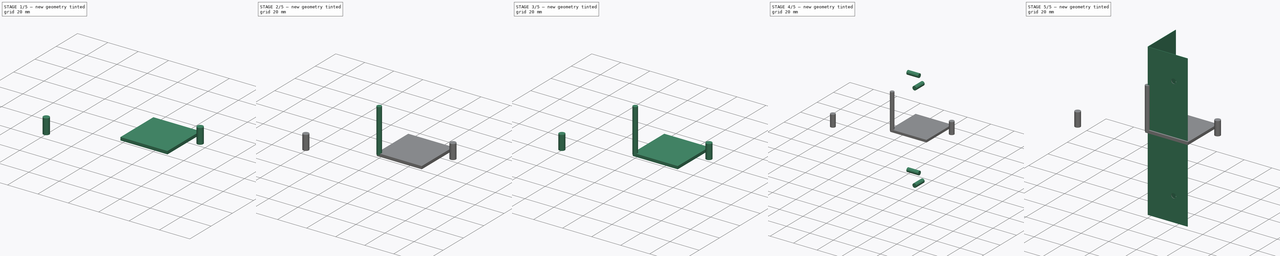
[diagram: build sequence overview — one tinted view per stage of 5, left to right]
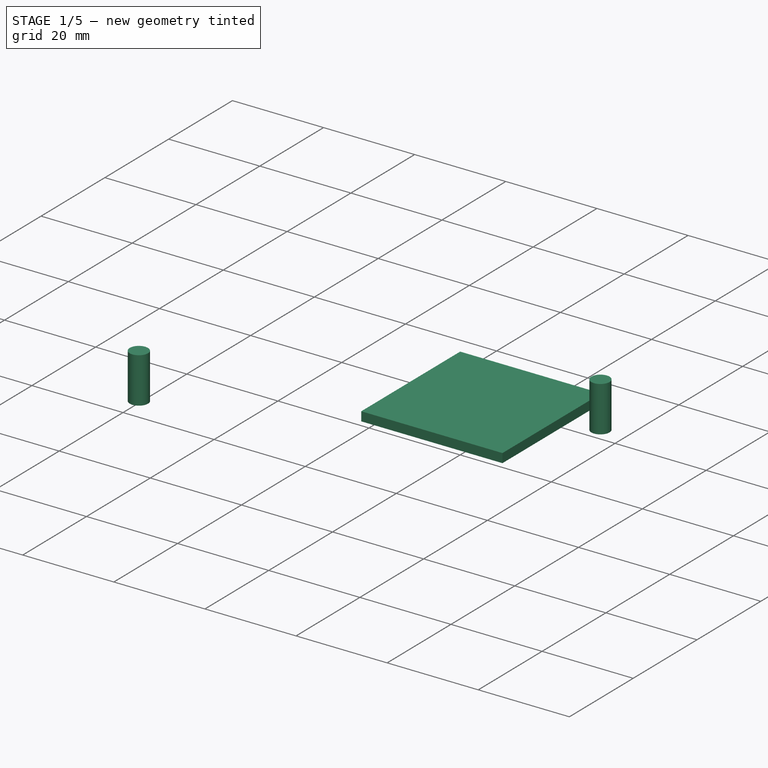
[diagram: stage 1 of 5 — iso view after this stage's code; geometry added in this stage tinted green]
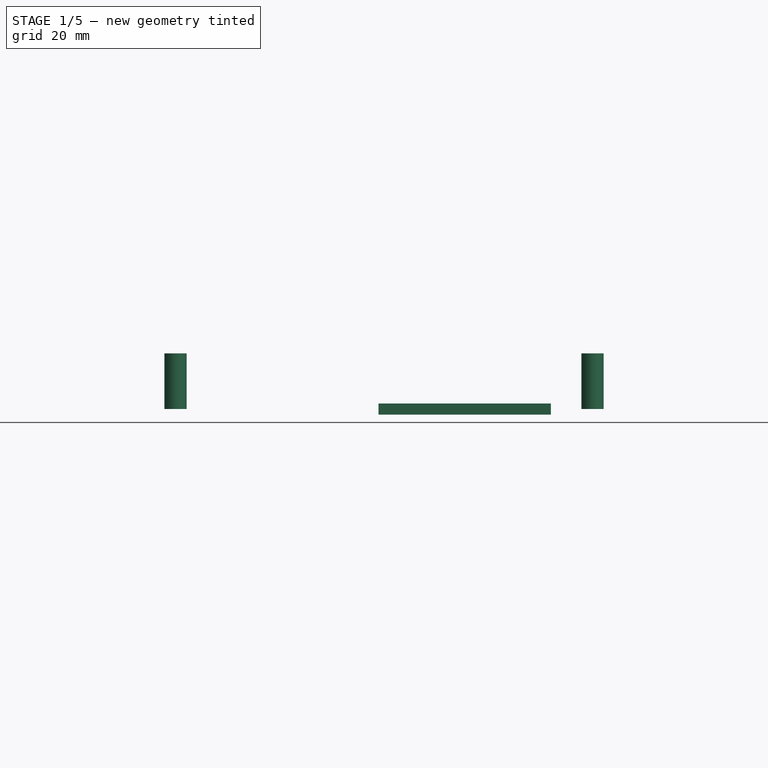
[diagram: stage 1 of 5 — front view after this stage's code; geometry added in this stage tinted green]
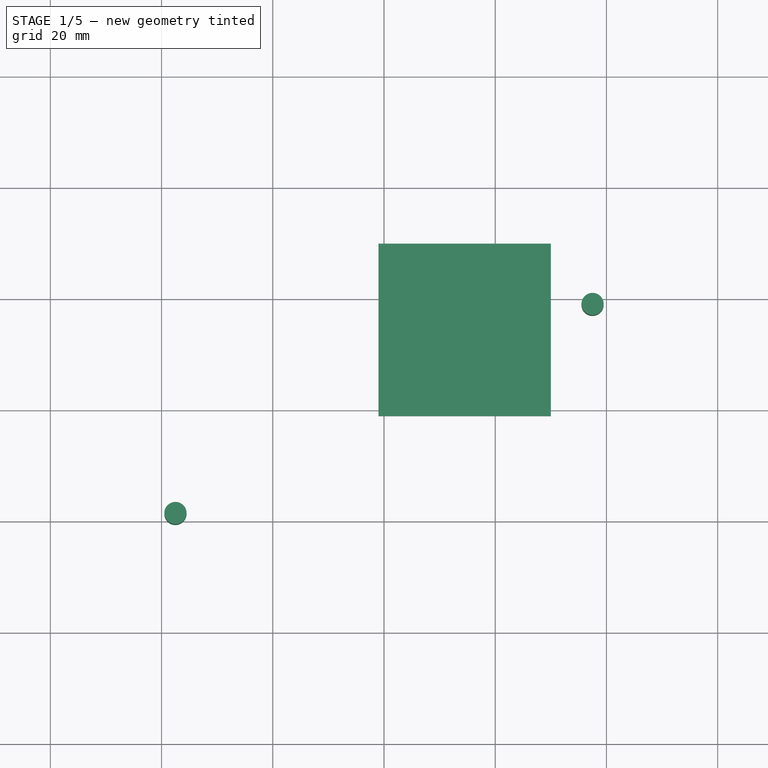
[diagram: stage 1 of 5 — top view after this stage's code; geometry added in this stage tinted green]
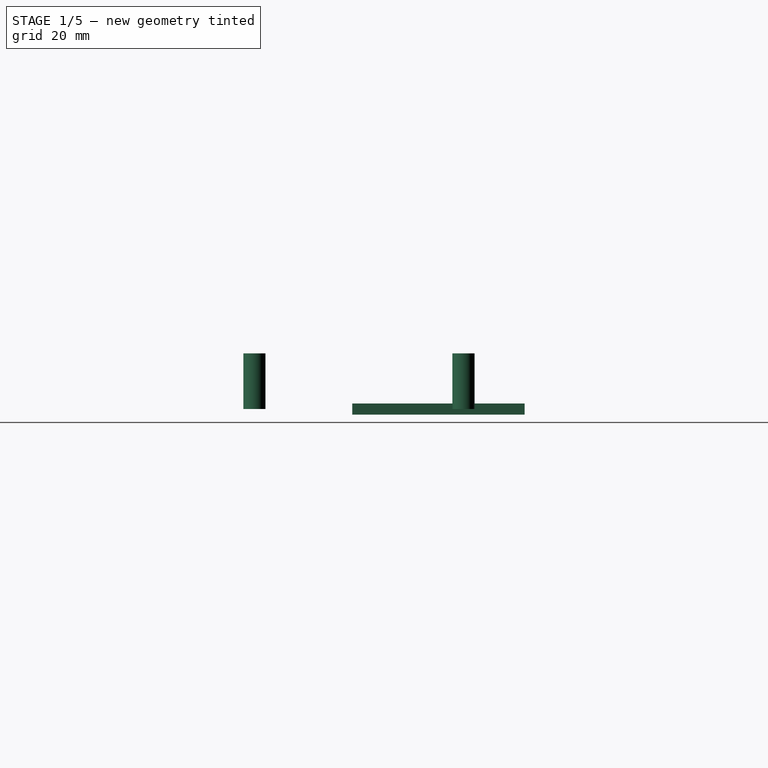
[diagram: stage 1 of 5 — right view after this stage's code; geometry added in this stage tinted green]
FCSTD DOCUMENT  (FreeCAD 1.1R38827 (Git))
Label: module_transport_corner2
License: All rights reserved
LicenseURL: http://en.wikipedia.org/wiki/All_rights_reserved
objects: Part::FeaturePython×40, Path::FeaturePython×16, App::DocumentObjectGroup×13, Part::Part2DObjectPython×8, Path::FeatureShape×6, Sketcher::SketchObject×5, Path::FeatureArea×5, App::FeaturePython×4, Path::FeatureCompound×4, PartDesign::Body×2, Part::Cylinder×2, PartDesign::SubShapeBinder×1, PartDesign::FeaturePython×1, Part::MultiFuse×1, PartDesign::Boolean×1, Part::Feature×1, Part::Compound×1
note: 80 computed .brp shape members not serialized (recipe doc carries the construction recipe); baked Part::Feature solids carry a one-line shape summary decoded from their .brp

FEATURE [PartDesign::Body] Body
  AllowCompound = false
  Group = -> [Binder,BaseBend,Boolean]
  Origin = -> Origin
  Tip = -> Boolean
FEATURE [Part::Feature] Unfold
  Placement = pos=(0,0,0) rot=(0.57735,0.57735,0.57735;2.0944rad)
  shape: bbox 110 x 57.59 x 0.3 mm, 10 faces (baked)
FEATURE [Sketcher::SketchObject] Unfold_Sketch
  ArcFitTolerance = 1e-06
  FullyConstrained = false
  MakeInternals = false
  sketch-geometry (8):
    g0: LineSegment StartX=-55 StartY=29 StartZ=0 EndX=-55 EndY=-28.5927 EndZ=0
    g1: LineSegment StartX=-55 StartY=-28.5927 StartZ=0 EndX=55 EndY=-28.5927 EndZ=0
    g2: LineSegment StartX=55 StartY=29 StartZ=0 EndX=55 EndY=-28.5927 EndZ=0
    g3: LineSegment StartX=-55 StartY=29 StartZ=0 EndX=55 EndY=29 EndZ=0
    g4: Circle CenterX=37.5 CenterY=-18.5927 CenterZ=0 NormalX=0 NormalY=0 NormalZ=-1 AngleXU=3.14159 Radius=1.7
    g5: Circle CenterX=-37.5 CenterY=-18.5927 CenterZ=0 NormalX=0 NormalY=0 NormalZ=-1 AngleXU=3.14159 Radius=1.7
    g6: Circle CenterX=37.5 CenterY=19 CenterZ=0 NormalX=0 NormalY=0 NormalZ=-1 AngleXU=-3.14159 Radius=1.7
    g7: Circle CenterX=-37.5 CenterY=19 CenterZ=0 NormalX=0 NormalY=0 NormalZ=-1 AngleXU=-3.14159 Radius=1.7
FEATURE [Sketcher::SketchObject] Unfold_Sketch_Outline
  ArcFitTolerance = 1e-06
  FullyConstrained = false
  MakeInternals = false
  sketch-geometry (4):
    g0: LineSegment StartX=-55 StartY=29 StartZ=0 EndX=-55 EndY=-28.5927 EndZ=0
    g1: LineSegment StartX=-55 StartY=-28.5927 StartZ=0 EndX=55 EndY=-28.5927 EndZ=0
    g2: LineSegment StartX=55 StartY=29 StartZ=0 EndX=55 EndY=-28.5927 EndZ=0
    g3: LineSegment StartX=-55 StartY=29 StartZ=0 EndX=55 EndY=29 EndZ=0
FEATURE [Sketcher::SketchObject] Unfold_Sketch_Internal
  ArcFitTolerance = 1e-06
  FullyConstrained = false
  MakeInternals = false
  sketch-geometry (4):
    g0: Circle CenterX=-37.5 CenterY=19 CenterZ=0 NormalX=0 NormalY=0 NormalZ=-1 AngleXU=-3.14159 Radius=1.7
    g1: Circle CenterX=37.5 CenterY=19 CenterZ=0 NormalX=0 NormalY=0 NormalZ=-1 AngleXU=-3.14159 Radius=1.7
    g2: Circle CenterX=-37.5 CenterY=-18.5927 CenterZ=0 NormalX=0 NormalY=0 NormalZ=-1 AngleXU=3.14159 Radius=1.7
    g3: Circle CenterX=37.5 CenterY=-18.5927 CenterZ=0 NormalX=0 NormalY=0 NormalZ=-1 AngleXU=3.14159 Radius=1.7
FEATURE [Sketcher::SketchObject] Unfold_Sketch_bends
  ArcFitTolerance = 1e-06
  FullyConstrained = false
  MakeInternals = false
  Placement = pos=(0,0,0.5) rot=(0,0,1;0rad)
  sketch-geometry (1):
    g0: LineSegment StartX=55 StartY=0.20365 StartZ=0 EndX=-55 EndY=0.20365 EndZ=0
FEATURE [Path::FeatureArea] FeatureArea  label="per"
  Accuracy = 0.01
  Angle = 45
  AngleShift = 0
  CleanDistance = 0
  ClipFill = 0
  ClipperScale = 10000000
  Coplanar = 2
  Deflection = 0.01
  EndType = 0
  Explode = false
  ExtraPass = 0
  Fill = 2
  FitArcs = true
  FromCenter = false
  JoinType = 0
  LastStepover = 0
  MaxArcPoints = 100
  MinArcPoints = 4
  MiterLimit = 2
  Offset = 1.5875
  OpenMode = 0
  Operation = 0
  Outline = false
  PocketExtraOffset = 0
  PocketLastStepover = 0
  PocketMode = 0
  PocketStepover = 0
  Project = false
  Reorient = true
  RoundPrecision = 0
  SectionCount = 0
  SectionMode = 2
  SectionOffset = 0
  SectionTolerance = 1e-06
  Shift = 0
  Simplify = false
  Sources = -> [Unfold_Sketch_Outline]
  Stepdown = 1
  Stepover = 0
  SubjectFill = 0
  Thicken = false
  Tolerance = 1e-07
  ToolRadius = 1
  Unit = 1
FEATURE [Path::FeatureArea] FeatureArea001
  Accuracy = 0.01
  Angle = 45
  AngleShift = 0
  CleanDistance = 0
  ClipFill = 0
  ClipperScale = 10000000
  Coplanar = 0
  Deflection = 0.01
  EndType = 0
  Explode = false
  ExtraPass = 0
  Fill = 1
  FitArcs = true
  FromCenter = false
  JoinType = 0
  LastStepover = 0
  MaxArcPoints = 100
  MinArcPoints = 4
  MiterLimit = 2
  Offset = -1.5875
  OpenMode = 0
  Operation = 0
  Outline = false
  PocketExtraOffset = 0
  PocketLastStepover = 0
  PocketMode = 0
  PocketStepover = 0
  Project = false
  Reorient = true
  RoundPrecision = 0
  SectionCount = 0
  SectionMode = 2
  SectionOffset = 0
  SectionTolerance = 1e-06
  Shift = 0
  Simplify = false
  Sources = -> [Unfold_Sketch_Internal]
  Stepdown = 1
  Stepover = 0
  SubjectFill = 0
  Thicken = false
  Tolerance = 1e-07
  ToolRadius = 1
  Unit = 1
FEATURE [Part::FeaturePython] Placment  # WARN: FeaturePython — macro-defined, semantics opaque (R4)
  AttacherType = Attacher::AttachEngine3D
  ExposePlacement = true
  MarkerShape = 1
  MarkerSize = 10
  NumElements = 1
  Placement = pos=(-37.5,-18.5927,0) rot=(0,0,1;0rad)
  Type = lattice2AttachablePlacement.AttachablePlacement
  isLattice = 1
FEATURE [Part::FeaturePython] Placment001  # WARN: FeaturePython — macro-defined, semantics opaque (R4)
  AttacherType = Attacher::AttachEngine3D
  ExposePlacement = true
  MarkerShape = 1
  MarkerSize = 10
  NumElements = 1
  Placement = pos=(37.5,19,0) rot=(0,0,1;0rad)
  Type = lattice2AttachablePlacement.AttachablePlacement
  isLattice = 1
FEATURE [Part::FeaturePython] Join001  # WARN: FeaturePython — macro-defined, semantics opaque (R4)
  ExposePlacement = false
  Interleave = false
  Links = -> [Placment,Placment001]
  MarkerShape = 1
  MarkerSize = 0
  NumElements = 2
  Type = lattice2JoinArrays.JoinArrays
  isLattice = 1
FEATURE [Part::Cylinder] Cylinder001  label="fix_cyl"
  Angle = 360
  AttacherType = Attacher::AttachEngine3D
  FirstAngle = 0
  Height = 10
  Radius = 2
  SecondAngle = 0
FEATURE [Part::FeaturePython] Populate001  label="Populate Join001 with fix_cyl"  # WARN: FeaturePython — macro-defined, semantics opaque (R4)
  Copying = 0
  ExposePlacement = false
  MarkerShape = 1
  MarkerSize = 0
  NumElements = 0
  Object = -> Cylinder001
  OutputCompounding = 1
  PlacementsTo = -> Join001
  Referencing = 0
  Type = lattice2PopulateCopies.LatticePopulateCopies
  isLattice = 0
FEATURE [Path::FeaturePython] TC__Default_Tool003  label="Tool 3,175 1Flute003"  # Path/CAM operation (typed FeaturePython)
  HorizFeed = 51.6667
  HorizRapid = 0
  SpindleDir = 0
  SpindleSpeed = 18000
  Tool = -> ToolBit003
  ToolNumber = 1
  VertFeed = 16.6667
  VertRapid = 0
  expr: HorizRapid = SetupSheet003.HorizRapid
  expr: VertRapid = SetupSheet003.VertRapid
FEATURE [Path::FeaturePython] Custom006  # Path/CAM operation (typed FeaturePython)
  Active = true
  CoolantMode = 0
  CycleTime = 00:00:00
  Gcode = G0 Z10
  OpStockZMax = 1
  OpStockZMin = -1
  OpToolDiameter = 3.175
  Source = 0
  StartDepth = 1
  ToolController = -> TC__Default_Tool003
FEATURE [Path::FeaturePython] Custom007  # Path/CAM operation (typed FeaturePython)
  Active = true
  CoolantMode = 0
  CycleTime = Cycletime Error
  OpStockZMax = 1
  OpStockZMin = -1
  OpToolDiameter = 3.175
  Source = 0
  StartDepth = 1
  ToolController = -> TC__Default_Tool003
FEATURE [App::DocumentObjectGroup] Tools003
  Group = -> [TC__Default_Tool003]
FEATURE [Part::FeaturePython] Stock003  # WARN: FeaturePython — macro-defined, semantics opaque (R4)
  Base = -> Model003
  ExtXneg = 1
  ExtXpos = 1
  ExtYneg = 1
  ExtYpos = 1
  ExtZneg = 1
  ExtZpos = 1
  StockType = FromBase
FEATURE [Part::Part2DObjectPython] Clone2D004  label="Unfold_Sketch (2D)"  # Draft 2D object (typed FeaturePython)
  Fuse = false
  Objects = -> [Unfold_Sketch]
  Placement = pos=(-55,28.5927,0) rot=(0,0,1;0rad)
  Scale = (1,1,1)
FEATURE [Part::FeaturePython] Placment002  # WARN: FeaturePython — macro-defined, semantics opaque (R4)
  AttacherType = Attacher::AttachEngine3D
  AttachmentSupport = -> [Clone2D004]
  ExposePlacement = true
  MapMode = 2
  MarkerShape = 1
  MarkerSize = 50
  NumElements = 1
  Placement = pos=(-55,28.5927,0) rot=(0,0,1;0rad)
  Type = lattice2AttachablePlacement.AttachablePlacement
  isLattice = 1
FEATURE [Part::FeaturePython] Populate004  label="Populate Placment002 with Populate LinearArray001 with LinearArray002"  # WARN: FeaturePython — macro-defined, semantics opaque (R4)
  Copying = 0
  ExposePlacement = false
  MarkerShape = 1
  MarkerSize = 0
  NumElements = 48
  Object = -> Join002
  OutputCompounding = 0
  PlacementsTo = -> Placment002
  Referencing = 0
  Type = lattice2PopulateCopies.LatticePopulateCopies
  isLattice = 1
FEATURE [Part::FeaturePython] Populate006  label="cut_placements2"  # WARN: FeaturePython — macro-defined, semantics opaque (R4)
  Copying = 0
  ExposePlacement = false
  MarkerShape = 1
  MarkerSize = 0
  NumElements = 96
  Object = -> Populate004
  OutputCompounding = 0
  PlacementsTo = -> Join003
  Referencing = 0
  Type = lattice2PopulateCopies.LatticePopulateCopies
  isLattice = 1
FEATURE [Part::FeaturePython] Join004  label="cut_placements"  # WARN: FeaturePython — macro-defined, semantics opaque (R4)
  ExposePlacement = false
  Interleave = false
  Links = -> [Populate004]
  MarkerShape = 1
  MarkerSize = 0
  NumElements = 48
  Type = lattice2JoinArrays.JoinArrays
  isLattice = 1
FEATURE [Part::FeaturePython] Populate007  label="cut_placements with per"  # WARN: FeaturePython — macro-defined, semantics opaque (R4)
  Copying = 0
  ExposePlacement = false
  MarkerShape = 1
  MarkerSize = 0
  NumElements = 0
  Object = -> FeatureArea
  OutputCompounding = 1
  PlacementsTo = -> Join004
  Referencing = 0
  Type = lattice2PopulateCopies.LatticePopulateCopies
  isLattice = 0
FEATURE [Part::FeaturePython] Populate008  label="Populate cut_placements with fix"  # WARN: FeaturePython — macro-defined, semantics opaque (R4)
  Copying = 0
  ExposePlacement = false
  MarkerShape = 1
  MarkerSize = 0
  NumElements = 0
  Object = -> FeatureArea003
  OutputCompounding = 1
  PlacementsTo = -> Join004
  Referencing = 0
  Type = lattice2PopulateCopies.LatticePopulateCopies
  isLattice = 0
FEATURE [Path::FeatureShape] PathShape
  AbsoluteArcCenter = false
  ArcPlane = 1
  Deflection = 0.01
  Direction = 0
  EmitPreamble = true
  FeedRate = 52
  FeedRateVertical = 17
  MinDistance = 0
  NearestK = 3
  Orientation = 0
  ResumeHeight = 3
  RetractAxis = 2
  RetractThreshold = 3.2
  Retraction = 20
  Segmentation = 0
  SortAbscissa = 3
  SortMode = 1
  Sources = -> [Populate008]
  StartPoint = (0,0,0)
  UseStartPoint = false
  Verbose = true
FEATURE [Part::FeaturePython] Populate009  label="Populate cut_placements with holes"  # WARN: FeaturePython — macro-defined, semantics opaque (R4)
  Copying = 0
  ExposePlacement = false
  MarkerShape = 1
  MarkerSize = 0
  NumElements = 0
  Object = -> FeatureArea004
  OutputCompounding = 1
  PlacementsTo = -> Join004
  Referencing = 0
  Type = lattice2PopulateCopies.LatticePopulateCopies
  isLattice = 0
FEATURE [Path::FeatureShape] PathShape001
  AbsoluteArcCenter = false
  ArcPlane = 1
  Deflection = 0.01
  Direction = 0
  EmitPreamble = true
  FeedRate = 52
  FeedRateVertical = 17
  MinDistance = 0
  NearestK = 3
  Orientation = 0
  ResumeHeight = 3
  RetractAxis = 2
  RetractThreshold = 3.2
  Retraction = 20
  Segmentation = 0
  SortAbscissa = 3
  SortMode = 1
  Sources = -> [Populate009]
  StartPoint = (0,0,0)
  UseStartPoint = false
  Verbose = true
FEATURE [Path::FeatureShape] PathShape002
  AbsoluteArcCenter = false
  ArcPlane = 1
  Deflection = 0.01
  Direction = 0
  EmitPreamble = true
  FeedRate = 52
  FeedRateVertical = 17
  MinDistance = 0
  NearestK = 3
  Orientation = 0
  ResumeHeight = 3
  RetractAxis = 2
  RetractThreshold = 0
  Retraction = 20
  Segmentation = 0
  SortAbscissa = 3
  SortMode = 1
  Sources = -> [Populate007]
  StartPoint = (0,0,0)
  UseStartPoint = false
  Verbose = true
FEATURE [Path::FeatureCompound] Compound
  Group = -> [PathShape]
  UsePlacements = false
FEATURE [App::DocumentObjectGroup] Operations
  Group = -> [Custom,Compound,Custom003]
FEATURE [Path::FeaturePython] Job  label="1-fix"  # Path/CAM operation (typed FeaturePython)
  CycleTime = 00:00:00
  Fixtures = G54
  GeometryTolerance = 0.01
  JobType = 0
  Model = -> Model
  Operations = -> Operations
  OrderOutputBy = 2
  PostProcessor = 22
  PostProcessorArgs = --axis-modal --modal
  PostProcessorOutputFile = <path>/%j-%S.tap
  SetupSheet = -> SetupSheet
  SplitOutput = false
  Stock = -> Stock
  Tools = -> Tools
FEATURE [Path::FeatureCompound] Compound001
  Group = -> [PathShape002]
  UsePlacements = false
FEATURE [App::DocumentObjectGroup] Operations001
  Group = -> [Custom001,Compound001,Custom004]
FEATURE [Path::FeaturePython] Job001  label="4-per"  # Path/CAM operation (typed FeaturePython)
  CycleTime = 00:00:00
  Fixtures = G54
  GeometryTolerance = 0.01
  JobType = 0
  Model = -> Model001
  Operations = -> Operations001
  OrderOutputBy = 2
  PostProcessor = 22
  PostProcessorArgs = --axis-modal --modal
  PostProcessorOutputFile = <path>/%j-%S.tap
  SetupSheet = -> SetupSheet001
  SplitOutput = false
  Stock = -> Stock001
  Tools = -> Tools001
FEATURE [Part::FeaturePython] Populate010  label="Populate cut_placements with Unfold_Sketch_bends"  # WARN: FeaturePython — macro-defined, semantics opaque (R4)
  Copying = 0
  ExposePlacement = false
  MarkerShape = 1
  MarkerSize = 0
  NumElements = 0
  Object = -> Unfold_Sketch_bends
  OutputCompounding = 1
  PlacementsTo = -> Join004
  Referencing = 0
  Type = lattice2PopulateCopies.LatticePopulateCopies
  isLattice = 0
FEATURE [Path::FeatureShape] PathShape003
  AbsoluteArcCenter = false
  ArcPlane = 1
  Deflection = 0.01
  Direction = 0
  EmitPreamble = true
  FeedRate = 52
  FeedRateVertical = 17
  MinDistance = 0
  NearestK = 3
  Orientation = 0
  ResumeHeight = 3
  RetractAxis = 2
  RetractThreshold = 3.3
  Retraction = 20
  Segmentation = 0
  SortAbscissa = 3
  SortMode = 1
  Sources = -> [Populate010]
  StartPoint = (0,0,0)
  UseStartPoint = false
  Verbose = true
FEATURE [Path::FeatureCompound] Compound002
  Group = -> [PathShape003]
  UsePlacements = true
FEATURE [App::DocumentObjectGroup] Operations002
  Group = -> [Custom002,Compound002,Custom005]
FEATURE [Path::FeaturePython] Job002  label="3-90bend"  # Path/CAM operation (typed FeaturePython)
  CycleTime = 00:00:00
  Fixtures = G54
  GeometryTolerance = 0.01
  JobType = 0
  Model = -> Model002
  Operations = -> Operations002
  OrderOutputBy = 2
  PostProcessor = 22
  PostProcessorArgs = --axis-modal --modal
  PostProcessorOutputFile = <path>/%j-%S.tap
  SetupSheet = -> SetupSheet002
  SplitOutput = false
  Stock = -> Stock002
  Tools = -> Tools002
FEATURE [Part::FeaturePython] Populate012  label="Populate cut_placements with Array from Vertices of Unfold_Sketch_bends"  # WARN: FeaturePython — macro-defined, semantics opaque (R4)
  Copying = 0
  ExposePlacement = false
  MarkerShape = 1
  MarkerSize = 0
  NumElements = 96
  Object = -> ArrayFromShape
  OutputCompounding = 0
  PlacementsTo = -> Join004
  Referencing = 0
  Type = lattice2PopulateCopies.LatticePopulateCopies
  isLattice = 1
FEATURE [Part::FeaturePython] Populate013  label="Populate Populate cut_placements with Array from Vertices of Unfold_Sketch_bends with Circle"  # WARN: FeaturePython — macro-defined, semantics opaque (R4)
  Copying = 0
  ExposePlacement = false
  MarkerShape = 1
  MarkerSize = 0
  NumElements = 0
  Object = -> Circle
  OutputCompounding = 1
  PlacementsTo = -> Populate012
  Referencing = 0
  Type = lattice2PopulateCopies.LatticePopulateCopies
  isLattice = 0
FEATURE [Path::FeatureShape] PathShape004
  AbsoluteArcCenter = false
  ArcPlane = 1
  Deflection = 0.01
  Direction = 0
  EmitPreamble = true
  FeedRate = 52
  FeedRateVertical = 17
  MinDistance = 0
  NearestK = 3
  Orientation = 0
  ResumeHeight = 3
  RetractAxis = 2
  RetractThreshold = 3.3
  Retraction = 20
  Segmentation = 0
  SortAbscissa = 3
  SortMode = 1
  Sources = -> [Populate013]
  StartPoint = (0,0,0)
  UseStartPoint = false
  Verbose = true
FEATURE [Path::FeatureCompound] Compound003
  Group = -> [PathShape001,PathShape004]
  UsePlacements = false
FEATURE [App::DocumentObjectGroup] Operations003
  Group = -> [Custom007,Compound003,Custom006]
FEATURE [Path::FeaturePython] Job003  label="2-holes"  # Path/CAM operation (typed FeaturePython)
  CycleTime = 00:00:00
  Fixtures = G54
  GeometryTolerance = 0.01
  JobType = 0
  Model = -> Model003
  Operations = -> Operations003
  OrderOutputBy = 2
  PostProcessor = 22
  PostProcessorArgs = --axis-modal --modal
  PostProcessorOutputFile = <path>/%j-%S.tap
  SetupSheet = -> SetupSheet003
  SplitOutput = false
  Stock = -> Stock003
  Tools = -> Tools003
FEATURE [App::DocumentObjectGroup] Group  label="jobs"
  Group = -> [Job,Job003,Job002,Job001]
FEATURE [Part::Part2DObjectPython] Rectangle  # Draft 2D object (typed FeaturePython)
  Area = 0
  ChamferSize = 0
  Columns = 1
  FilletRadius = 0
  Height = 400
  Length = 1000
  MakeFace = false
  Placement = pos=(-1000,0,0) rot=(0,0,1;0rad)
  Rows = 1
FEATURE [Part::FeaturePython] Populate014  label="Populate Array from Vertices of Unfold_Sketch_bends with Circle"  # WARN: FeaturePython — macro-defined, semantics opaque (R4)
  Copying = 0
  ExposePlacement = false
  MarkerShape = 1
  MarkerSize = 0
  NumElements = 0
  Object = -> Circle
  OutputCompounding = 1
  PlacementsTo = -> ArrayFromShape
  Referencing = 0
  Type = lattice2PopulateCopies.LatticePopulateCopies
  isLattice = 0
FEATURE [Part::Compound] Compound004
  Links = -> [FeatureArea004,Populate014]
FEATURE [Part::FeaturePython] Populate015  label="Populate cut_placements with Compound004"  # WARN: FeaturePython — macro-defined, semantics opaque (R4)
  Copying = 0
  ExposePlacement = false
  MarkerShape = 1
  MarkerSize = 0
  NumElements = 0
  Object = -> Compound004
  OutputCompounding = 1
  PlacementsTo = -> Join004
  Referencing = 0
  Type = lattice2PopulateCopies.LatticePopulateCopies
  isLattice = 0
FEATURE [Path::FeatureShape] PathShape005
  AbsoluteArcCenter = false
  ArcPlane = 1
  Deflection = 0.01
  Direction = 0
  EmitPreamble = true
  FeedRate = 52
  FeedRateVertical = 17
  MinDistance = 0
  NearestK = 3
  Orientation = 0
  ResumeHeight = 3
  RetractAxis = 2
  RetractThreshold = 3.2
  Retraction = 20
  Segmentation = 0
  SortAbscissa = 3
  SortMode = 2
  Sources = -> [Populate015]
  StartPoint = (0,0,0)
  UseStartPoint = false
  Verbose = true
note: 8 file-system paths scrubbed to <path> (originals preserved in the JSON sidecar)
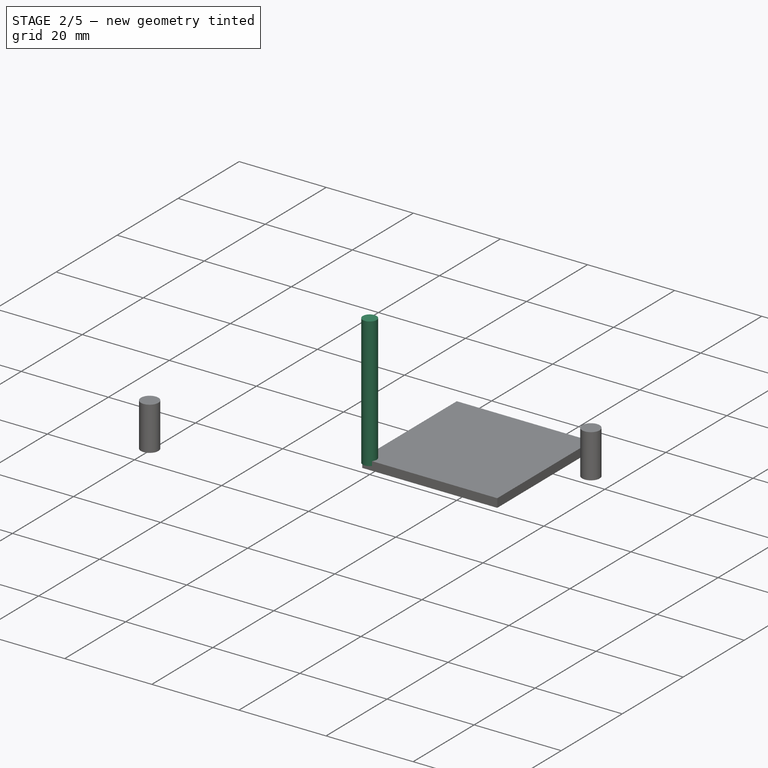
[diagram: stage 2 of 5 — iso view after this stage's code; geometry added in this stage tinted green]
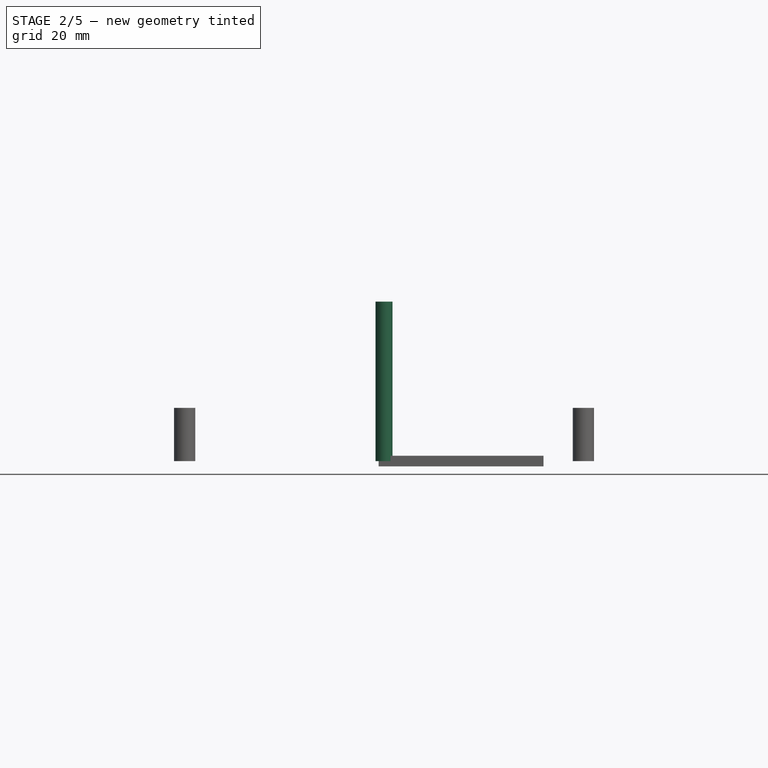
[diagram: stage 2 of 5 — front view after this stage's code; geometry added in this stage tinted green]
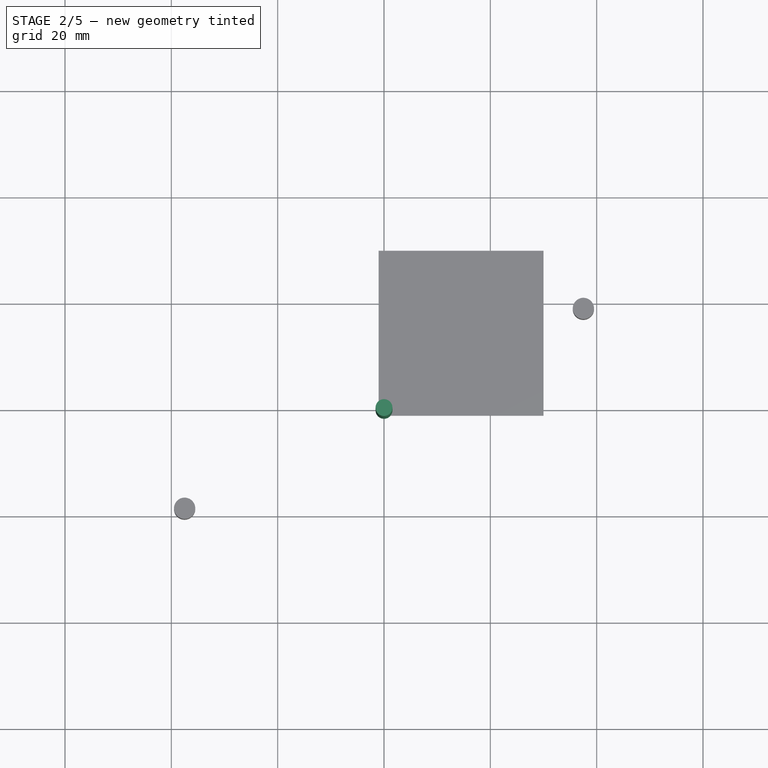
[diagram: stage 2 of 5 — top view after this stage's code; geometry added in this stage tinted green]
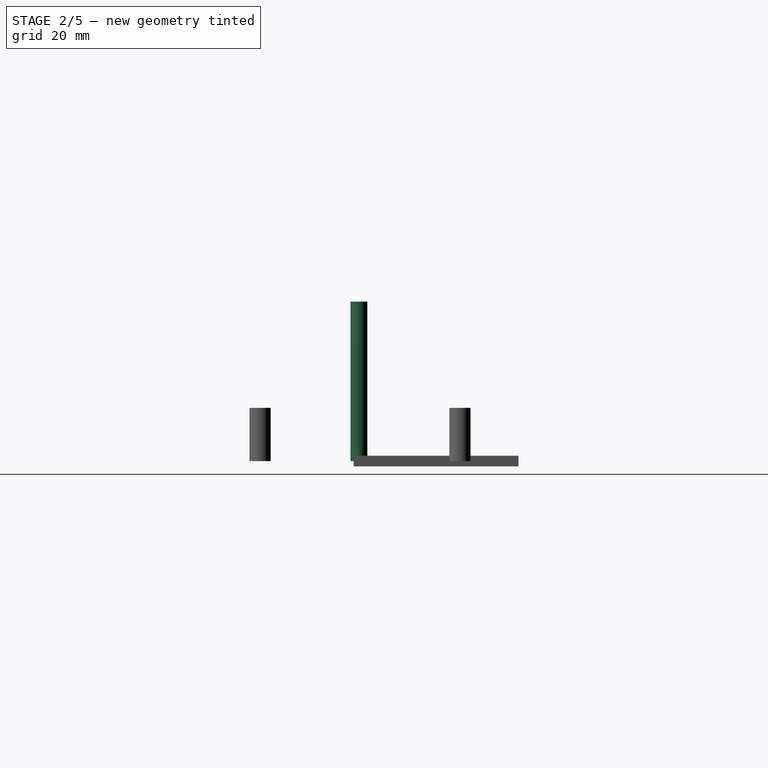
[diagram: stage 2 of 5 — right view after this stage's code; geometry added in this stage tinted green]
FEATURE [Path::FeaturePython] Custom  # Path/CAM operation (typed FeaturePython)
  Active = true
  CoolantMode = 0
  CycleTime = Cycletime Error
  OpStockZMax = 1
  OpStockZMin = -1
  OpToolDiameter = 3.175
  Source = 0
  StartDepth = 1
  ToolController = -> TC__Default_Tool
FEATURE [App::FeaturePython] SetupSheet001  # Path/CAM operation (typed FeaturePython)
  ClearanceHeightExpression = SetupSheet.ClearanceHeightOffset
  ClearanceHeightOffset = 15
  CoolantMode = 0
  CoolantModes = None | Flood | Mist
  FinalDepthExpression = -0,05 mm
  HorizRapid = 0
  ProfileDirection = 1
  ProfileSide = 0
  SafeHeightExpression = SetupSheet.SafeHeightOffset
  SafeHeightOffset = 3
  StartDepthExpression = 3 mm
  StepDownExpression = 10 mm
  VertRapid = 0
FEATURE [Part::Part2DObjectPython] Clone2D001  label="Model-Sketch001"  # Draft 2D object (typed FeaturePython)
  Fuse = false
  Objects = -> [Sketch]
  PathResource = Model
  Scale = (1,1,1)
FEATURE [App::DocumentObjectGroup] Model001
  Group = -> [Clone2D001]
FEATURE [Part::FeaturePython] ToolBit001  label="Endmill001"  # Path/CAM toolbit (typed FeaturePython)
  BitPropertyNames = Chipload | CuttingEdgeHeight | Diameter | Flutes | Length | Material | ShankDiameter | SpindleDirection
  BitShape = <path>
  Chipload = 0
  CuttingEdgeHeight = 10
  Diameter = 3.175
  Flutes = 0
  Length = 30
  Material = 0
  ShankDiameter = 3.175
  ShapeName = endmill
  SpindleDirection = 1
FEATURE [Part::FeaturePython] ToolBit002  label="Endmill002"  # Path/CAM toolbit (typed FeaturePython)
  BitPropertyNames = Chipload | CuttingEdgeHeight | Diameter | Flutes | Length | Material | ShankDiameter | SpindleDirection
  BitShape = <path>
  Chipload = 0
  CuttingEdgeHeight = 10
  Diameter = 3.175
  Flutes = 0
  Length = 30
  Material = 0
  ShankDiameter = 3.175
  ShapeName = endmill
  SpindleDirection = 1
FEATURE [Path::FeaturePython] Custom003  # Path/CAM operation (typed FeaturePython)
  Active = true
  CoolantMode = 0
  CycleTime = 00:00:00
  Gcode = G0 Z10
  OpStockZMax = 1
  OpStockZMin = -1
  OpToolDiameter = 3.175
  Source = 0
  StartDepth = 1
  ToolController = -> TC__Default_Tool
FEATURE [Path::FeaturePython] Custom004  # Path/CAM operation (typed FeaturePython)
  Active = true
  CoolantMode = 0
  CycleTime = 00:00:00
  Gcode = G0 Z10
  OpStockZMax = 1
  OpStockZMin = -1
  OpToolDiameter = 3.175
  Source = 0
  StartDepth = 1
  ToolController = -> TC__Default_Tool001
FEATURE [Path::FeaturePython] Custom005  # Path/CAM operation (typed FeaturePython)
  Active = true
  CoolantMode = 0
  CycleTime = 00:00:00
  Gcode = G0 Z10
  OpStockZMax = 1
  OpStockZMin = -1
  OpToolDiameter = 3.175
  Source = 0
  StartDepth = 1
  ToolController = -> TC__Default_Tool002
FEATURE [Part::FeaturePython] Downgrade  label="Vertices of Unfold_Sketch_bends"  # WARN: FeaturePython — macro-defined, semantics opaque (R4)
  Base = -> Unfold_Sketch_bends
  Mode = 11
FEATURE [Part::FeaturePython] ArrayFromShape  label="Array from Vertices of Unfold_Sketch_bends"  # WARN: FeaturePython — macro-defined, semantics opaque (R4)
  CompoundTraversal = 1
  ExposePlacement = false
  MarkerShape = 1
  MarkerSize = 20
  NumElements = 2
  OrientElementIndex = 0
  OrientMode = 2
  ShapeLink = -> Downgrade
  TranslateElementIndex = 0
  TranslateMode = 3
  Type = lattice2ArrayFromShape.LatticeArrayFromShape
  isLattice = 1
FEATURE [Part::Part2DObjectPython] Circle  # Draft 2D object (typed FeaturePython)
  Area = 0
  FirstAngle = 0
  LastAngle = 0
  MakeFace = false
  Placement = pos=(0,0,2) rot=(0,0,1;0rad)
  Radius = 0.1
FEATURE [App::FeaturePython] SetupSheet003  # Path/CAM operation (typed FeaturePython)
  ClearanceHeightExpression = SetupSheet.ClearanceHeightOffset
  ClearanceHeightOffset = 15
  CoolantMode = 0
  CoolantModes = None | Flood | Mist
  FinalDepthExpression = -0,05 mm
  HorizRapid = 0
  ProfileDirection = 1
  ProfileSide = 0
  SafeHeightExpression = SetupSheet.SafeHeightOffset
  SafeHeightOffset = 3
  StartDepthExpression = 3 mm
  StepDownExpression = 10 mm
  VertRapid = 0
FEATURE [Part::Part2DObjectPython] Clone2D003  label="Model-Sketch003"  # Draft 2D object (typed FeaturePython)
  Fuse = false
  Objects = -> [Sketch]
  PathResource = Model
  Scale = (1,1,1)
FEATURE [App::DocumentObjectGroup] Model003
  Group = -> [Clone2D003]
FEATURE [Part::FeaturePython] ToolBit003  label="Endmill003"  # Path/CAM toolbit (typed FeaturePython)
  BitPropertyNames = Chipload | CuttingEdgeHeight | Diameter | Flutes | Length | Material | ShankDiameter | SpindleDirection
  BitShape = <path>
  Chipload = 0
  CuttingEdgeHeight = 10
  Diameter = 3.175
  Flutes = 0
  Length = 30
  Material = 0
  ShankDiameter = 3.175
  ShapeName = endmill
  SpindleDirection = 1
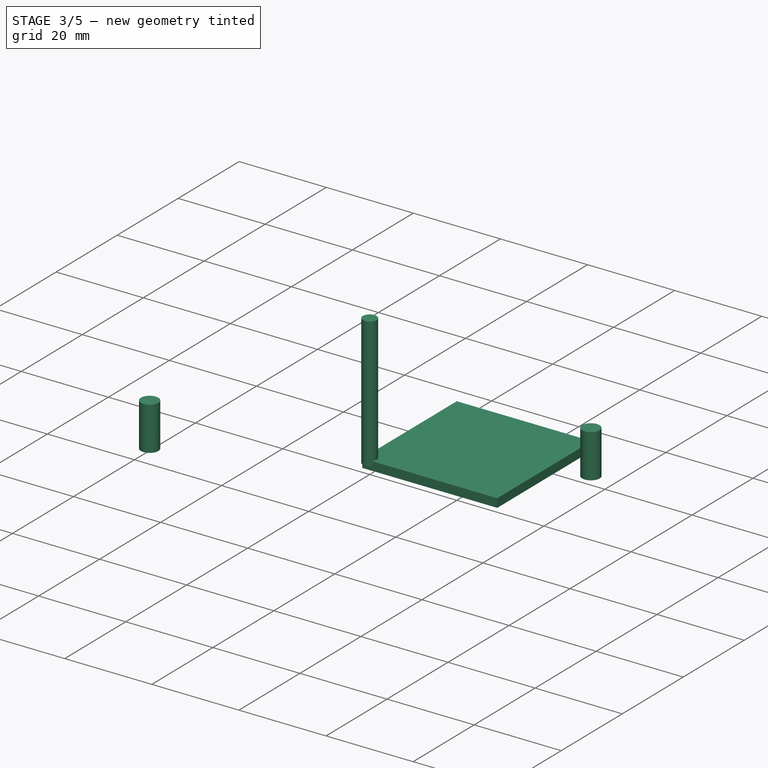
[diagram: stage 3 of 5 — iso view after this stage's code; geometry added in this stage tinted green]
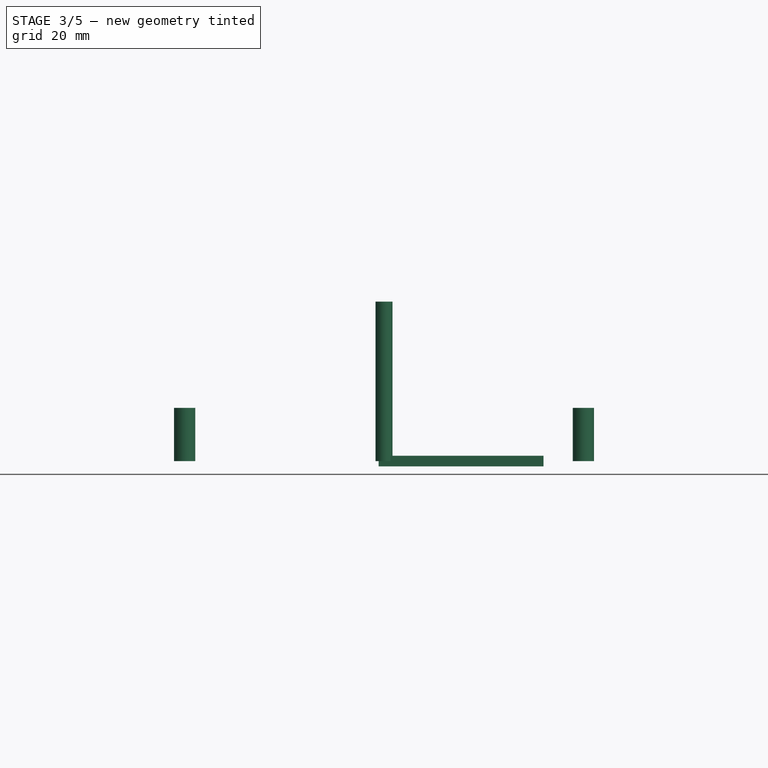
[diagram: stage 3 of 5 — front view after this stage's code; geometry added in this stage tinted green]
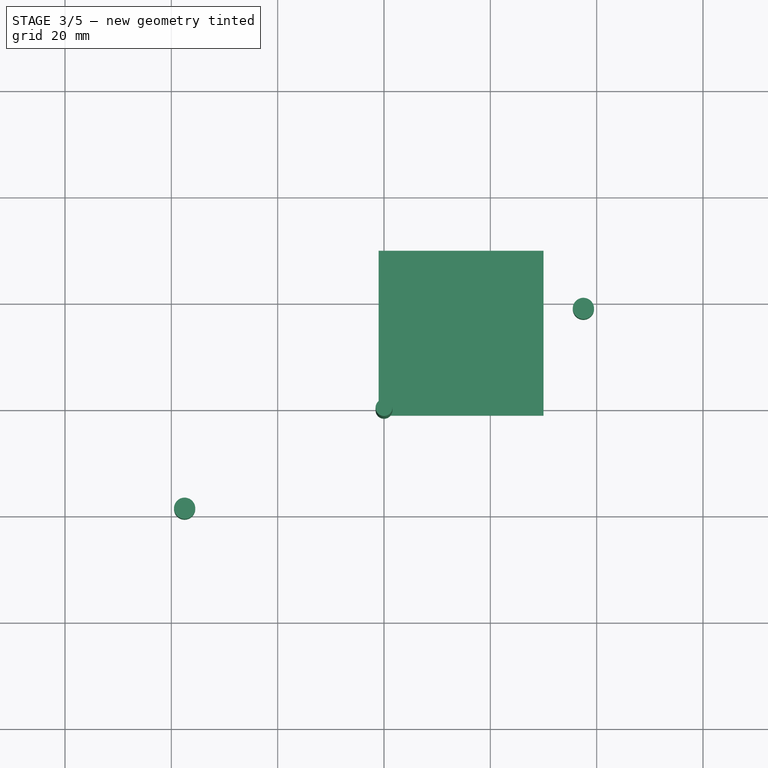
[diagram: stage 3 of 5 — top view after this stage's code; geometry added in this stage tinted green]
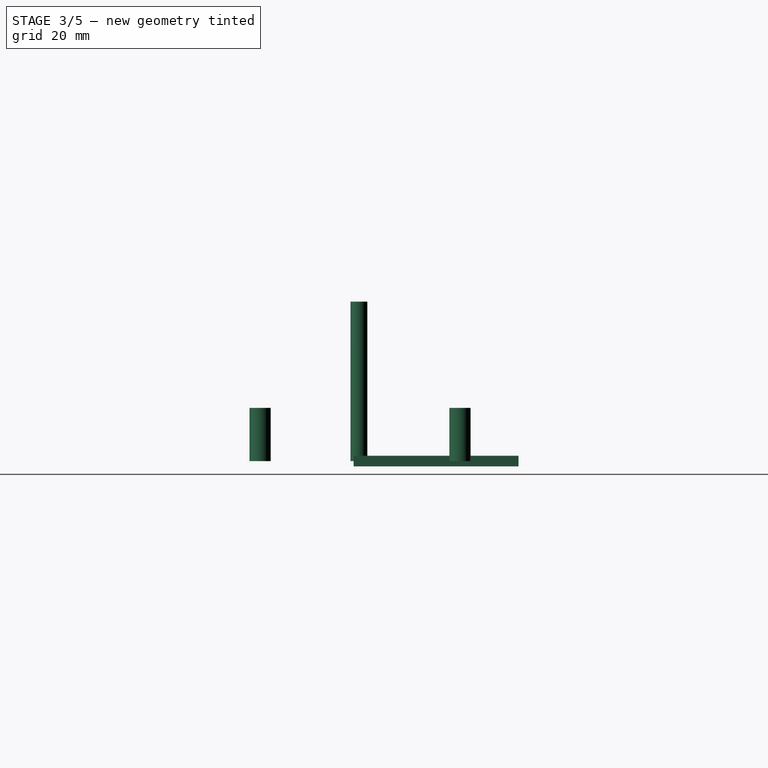
[diagram: stage 3 of 5 — right view after this stage's code; geometry added in this stage tinted green]
FEATURE [Path::FeatureArea] FeatureArea002
  Accuracy = 0.01
  Angle = 45
  AngleShift = 0
  CleanDistance = 0
  ClipFill = 0
  ClipperScale = 10000000
  Coplanar = 2
  Deflection = 0.01
  EndType = 0
  Explode = false
  ExtraPass = 0
  Fill = 2
  FitArcs = true
  FromCenter = false
  JoinType = 0
  LastStepover = 0
  MaxArcPoints = 100
  MinArcPoints = 4
  MiterLimit = 2
  OpenMode = 0
  Operation = 0
  Outline = false
  PocketExtraOffset = 0
  PocketLastStepover = 0
  PocketMode = 0
  PocketStepover = 0
  Project = false
  Reorient = true
  RoundPrecision = 0
  SectionCount = 1
  SectionMode = 0
  SectionOffset = 0
  SectionTolerance = 1e-06
  Shift = 0
  Simplify = false
  Sources = -> [Populate001]
  Stepdown = 1
  Stepover = 0
  SubjectFill = 0
  Thicken = false
  Tolerance = 1e-07
  ToolRadius = 1
  Unit = 1
FEATURE [Path::FeatureArea] FeatureArea003  label="fix"
  Accuracy = 0.01
  Angle = 45
  AngleShift = 0
  CleanDistance = 0
  ClipFill = 0
  ClipperScale = 10000000
  Coplanar = 1
  Deflection = 0.01
  EndType = 0
  Explode = false
  ExtraPass = 0
  Fill = 2
  FitArcs = true
  FromCenter = false
  JoinType = 0
  LastStepover = 0
  MaxArcPoints = 100
  MinArcPoints = 4
  MiterLimit = 2
  OpenMode = 0
  Operation = 2
  Outline = false
  PocketExtraOffset = 0
  PocketLastStepover = 0
  PocketMode = 0
  PocketStepover = 0
  Project = false
  Reorient = true
  RoundPrecision = 0
  SectionCount = 0
  SectionMode = 2
  SectionOffset = 0
  SectionTolerance = 1e-06
  Shift = 0
  Simplify = false
  Sources = -> [FeatureArea001,FeatureArea002]
  Stepdown = 1
  Stepover = 0
  SubjectFill = 0
  Thicken = false
  Tolerance = 1e-07
  ToolRadius = 1
  Unit = 1
FEATURE [Path::FeatureArea] FeatureArea004  label="holes"
  Accuracy = 0.01
  Angle = 45
  AngleShift = 0
  CleanDistance = 0
  ClipFill = 0
  ClipperScale = 10000000
  Coplanar = 1
  Deflection = 0.01
  EndType = 0
  Explode = false
  ExtraPass = 0
  Fill = 2
  FitArcs = true
  FromCenter = false
  JoinType = 0
  LastStepover = 0
  MaxArcPoints = 100
  MinArcPoints = 4
  MiterLimit = 2
  OpenMode = 0
  Operation = 1
  Outline = false
  PocketExtraOffset = 0
  PocketLastStepover = 0
  PocketMode = 0
  PocketStepover = 0
  Project = false
  Reorient = true
  RoundPrecision = 0
  SectionCount = 0
  SectionMode = 2
  SectionOffset = 0
  SectionTolerance = 1e-06
  Shift = 0
  Simplify = false
  Sources = -> [FeatureArea001,FeatureArea002]
  Stepdown = 1
  Stepover = 0
  SubjectFill = 0
  Thicken = false
  Tolerance = 1e-07
  ToolRadius = 1
  Unit = 1
FEATURE [Part::Part2DObjectPython] Wire  # Draft 2D object (typed FeaturePython)
  Area = 0
  ChamferSize = 0
  Closed = true
  End = (0,465,0)
  FilletRadius = 0
  Length = 4150
  MakeFace = false
  Points = (8) [(0,0,0),(-380,0,0),(-380,1030,0),(-580,1030,0),(-580,1495,0),(-190,1495,0),(-190,465,0),(0,465,0)]
  Start = (0,0,0)
  Subdivisions = 0
FEATURE [Part::FeaturePython] LinearArray001  # WARN: FeaturePython — macro-defined, semantics opaque (R4)
  Alignment = 0
  CellStart = A1
  Count = 8
  Dir = (1,0,0)
  DirIsDriven = true
  DistributionLaw = 0
  DrivenProperty = 1
  EndInclusive = true
  ExposePlacement = false
  GeneratorMode = 1
  MarkerShape = 1
  MarkerSize = 0
  NumElements = 8
  OrientMode = 1
  Point = (0,0,0)
  PointIsDriven = true
  Reverse = false
  SpanEnd = 500
  SpanStart = 0
  Step = -113.2
  Type = lattice2LinearArray.LinearArray
  VSGVersion = 1
  Values = 0.0 | -113.2 | -226.4 | -339.6 | -452.8 | -566.0 | -679.2 | -792.4
  ValuesSource = 2
  isLattice = 1
FEATURE [Part::FeaturePython] LinearArray002  # WARN: FeaturePython — macro-defined, semantics opaque (R4)
  Alignment = 0
  CellStart = A1
  Count = 6
  Dir = (0,1,0)
  DirIsDriven = true
  DistributionLaw = 0
  DrivenProperty = 1
  EndInclusive = true
  ExposePlacement = false
  GeneratorMode = 1
  MarkerShape = 1
  MarkerSize = 0
  NumElements = 6
  OrientMode = 0
  Point = (0,0,0)
  PointIsDriven = true
  Reverse = false
  SpanEnd = 500
  SpanStart = 0
  Step = 60.7677
  Type = lattice2LinearArray.LinearArray
  VSGVersion = 1
  Values = 0.0 | 60.7677 | 121.5354 | 182.3031 | 243.0708 | 303.8385
  ValuesSource = 2
  isLattice = 1
  expr: Step = 60.7677
FEATURE [Part::FeaturePython] Populate002  label="Populate LinearArray001 with LinearArray002"  # WARN: FeaturePython — macro-defined, semantics opaque (R4)
  Copying = 0
  ExposePlacement = false
  MarkerShape = 1
  MarkerSize = 0
  NumElements = 48
  Object = -> LinearArray002
  OutputCompounding = 0
  PlacementsTo = -> LinearArray001
  Referencing = 0
  Type = lattice2PopulateCopies.LatticePopulateCopies
  isLattice = 1
FEATURE [Part::FeaturePython] LinearArray003  # WARN: FeaturePython — macro-defined, semantics opaque (R4)
  Alignment = 0
  CellStart = A1
  Count = 2
  Dir = (1,0,0)
  DirIsDriven = true
  DistributionLaw = 0
  DrivenProperty = 1
  EndInclusive = true
  ExposePlacement = false
  GeneratorMode = 1
  MarkerShape = 1
  MarkerSize = 0
  NumElements = 2
  OrientMode = 1
  Placement = pos=(453.656,195.353,0) rot=(0,0,1;0rad)
  Point = (0,0,0)
  PointIsDriven = true
  Reverse = false
  SpanEnd = 500
  SpanStart = 0
  Step = 113.2
  Type = lattice2LinearArray.LinearArray
  VSGVersion = 1
  Values = 0.0 | 113.2
  ValuesSource = 2
  isLattice = 1
FEATURE [Part::FeaturePython] LinearArray004  # WARN: FeaturePython — macro-defined, semantics opaque (R4)
  Alignment = 0
  CellStart = A1
  Count = 3
  Dir = (0,1,0)
  DirIsDriven = true
  DistributionLaw = 0
  DrivenProperty = 1
  EndInclusive = true
  ExposePlacement = false
  GeneratorMode = 1
  MarkerShape = 1
  MarkerSize = 0
  NumElements = 3
  OrientMode = 0
  Point = (0,0,0)
  PointIsDriven = true
  Reverse = false
  SpanEnd = 500
  SpanStart = 0
  Step = 60.7677
  Type = lattice2LinearArray.LinearArray
  VSGVersion = 1
  Values = 0.0 | 60.7677 | 121.5354
  ValuesSource = 2
  isLattice = 1
  expr: Step = 60.7677
FEATURE [Part::FeaturePython] Populate005  label="Populate LinearArray004 with LinearArray003"  # WARN: FeaturePython — macro-defined, semantics opaque (R4)
  Copying = 0
  ExposePlacement = false
  MarkerShape = 1
  MarkerSize = 0
  NumElements = 6
  Object = -> LinearArray003
  OutputCompounding = 0
  PlacementsTo = -> LinearArray004
  Referencing = 0
  Type = lattice2PopulateCopies.LatticePopulateCopies
  isLattice = 1
FEATURE [Part::FeaturePython] Join002  # WARN: FeaturePython — macro-defined, semantics opaque (R4)
  ExposePlacement = false
  Interleave = false
  Links = -> [Populate002]
  MarkerShape = 1
  MarkerSize = 0
  NumElements = 48
  Type = lattice2JoinArrays.JoinArrays
  isLattice = 1
FEATURE [Part::FeaturePython] Placment003  # WARN: FeaturePython — macro-defined, semantics opaque (R4)
  AttacherType = Attacher::AttachEngine3D
  ExposePlacement = true
  MarkerShape = 1
  MarkerSize = 200
  NumElements = 1
  Type = lattice2AttachablePlacement.AttachablePlacement
  isLattice = 1
FEATURE [Part::FeaturePython] Placment004  # WARN: FeaturePython — macro-defined, semantics opaque (R4)
  AttacherType = Attacher::AttachEngine3D
  ExposePlacement = true
  MarkerShape = 1
  MarkerSize = 200
  NumElements = 1
  Placement = pos=(-575,1495,0) rot=(0,0,1;-3.14159rad)
  Type = lattice2AttachablePlacement.AttachablePlacement
  isLattice = 1
FEATURE [Part::FeaturePython] Join003  # WARN: FeaturePython — macro-defined, semantics opaque (R4)
  ExposePlacement = false
  Interleave = false
  Links = -> [Placment003,Placment004]
  MarkerShape = 1
  MarkerSize = 200
  NumElements = 2
  Type = lattice2JoinArrays.JoinArrays
  isLattice = 1
FEATURE [App::FeaturePython] SetupSheet  # Path/CAM operation (typed FeaturePython)
  ClearanceHeightExpression = SetupSheet.ClearanceHeightOffset
  ClearanceHeightOffset = 15
  CoolantMode = 0
  CoolantModes = None | Flood | Mist
  FinalDepthExpression = -0,05 mm
  HorizRapid = 0
  ProfileDirection = 1
  ProfileSide = 0
  SafeHeightExpression = SetupSheet.SafeHeightOffset
  SafeHeightOffset = 3
  StartDepthExpression = 3 mm
  StepDownExpression = 10 mm
  VertRapid = 0
FEATURE [Part::Part2DObjectPython] Clone2D  label="Model-Sketch"  # Draft 2D object (typed FeaturePython)
  Fuse = false
  Objects = -> [Sketch]
  PathResource = Model
  Scale = (1,1,1)
FEATURE [App::DocumentObjectGroup] Model
  Group = -> [Clone2D]
FEATURE [Part::FeaturePython] ToolBit  label="Endmill"  # Path/CAM toolbit (typed FeaturePython)
  BitPropertyNames = Chipload | CuttingEdgeHeight | Diameter | Flutes | Length | Material | ShankDiameter | SpindleDirection
  BitShape = <path>
  Chipload = 0
  CuttingEdgeHeight = 10
  Diameter = 3.175
  Flutes = 0
  Length = 30
  Material = 0
  ShankDiameter = 3.175
  ShapeName = endmill
  SpindleDirection = 1
FEATURE [Path::FeaturePython] TC__Default_Tool001  label="Tool 3,175 1Flute001"  # Path/CAM operation (typed FeaturePython)
  HorizFeed = 51.6667
  HorizRapid = 0
  SpindleDir = 0
  SpindleSpeed = 18000
  Tool = -> ToolBit001
  ToolNumber = 1
  VertFeed = 16.6667
  VertRapid = 0
  expr: HorizRapid = SetupSheet001.HorizRapid
  expr: VertRapid = SetupSheet001.VertRapid
FEATURE [Path::FeaturePython] Custom001  # Path/CAM operation (typed FeaturePython)
  Active = true
  CoolantMode = 0
  CycleTime = Cycletime Error
  OpStockZMax = 1
  OpStockZMin = -1
  OpToolDiameter = 3.175
  Source = 0
  StartDepth = 1
  ToolController = -> TC__Default_Tool001
FEATURE [App::DocumentObjectGroup] Tools001
  Group = -> [TC__Default_Tool001]
FEATURE [Part::FeaturePython] Stock001  # WARN: FeaturePython — macro-defined, semantics opaque (R4)
  Base = -> Model001
  ExtXneg = 1
  ExtXpos = 1
  ExtYneg = 1
  ExtYpos = 1
  ExtZneg = 1
  ExtZpos = 1
  StockType = FromBase
FEATURE [Path::FeaturePython] TC__Default_Tool002  label="Tool 3,175 1Flute002"  # Path/CAM operation (typed FeaturePython)
  HorizFeed = 51.6667
  HorizRapid = 0
  SpindleDir = 0
  SpindleSpeed = 18000
  Tool = -> ToolBit002
  ToolNumber = 1
  VertFeed = 16.6667
  VertRapid = 0
  expr: HorizRapid = SetupSheet002.HorizRapid
  expr: VertRapid = SetupSheet002.VertRapid
FEATURE [Path::FeaturePython] Custom002  # Path/CAM operation (typed FeaturePython)
  Active = true
  CoolantMode = 0
  CycleTime = Cycletime Error
  OpStockZMax = 1
  OpStockZMin = -1
  OpToolDiameter = 3.175
  Source = 0
  StartDepth = 1
  ToolController = -> TC__Default_Tool002
FEATURE [App::FeaturePython] SetupSheet002  # Path/CAM operation (typed FeaturePython)
  ClearanceHeightExpression = SetupSheet.ClearanceHeightOffset
  ClearanceHeightOffset = 15
  CoolantMode = 0
  CoolantModes = None | Flood | Mist
  FinalDepthExpression = -0,05 mm
  HorizRapid = 0
  ProfileDirection = 1
  ProfileSide = 0
  SafeHeightExpression = SetupSheet.SafeHeightOffset
  SafeHeightOffset = 3
  StartDepthExpression = 3 mm
  StepDownExpression = 10 mm
  VertRapid = 0
FEATURE [App::DocumentObjectGroup] Tools002
  Group = -> [TC__Default_Tool002]
FEATURE [Part::Part2DObjectPython] Clone2D002  label="Model-Sketch002"  # Draft 2D object (typed FeaturePython)
  Fuse = false
  Objects = -> [Sketch]
  PathResource = Model
  Scale = (1,1,1)
FEATURE [App::DocumentObjectGroup] Model002
  Group = -> [Clone2D002]
FEATURE [Part::FeaturePython] Stock002  # WARN: FeaturePython — macro-defined, semantics opaque (R4)
  Base = -> Model002
  ExtXneg = 1
  ExtXpos = 1
  ExtYneg = 1
  ExtYpos = 1
  ExtZneg = 1
  ExtZpos = 1
  StockType = FromBase
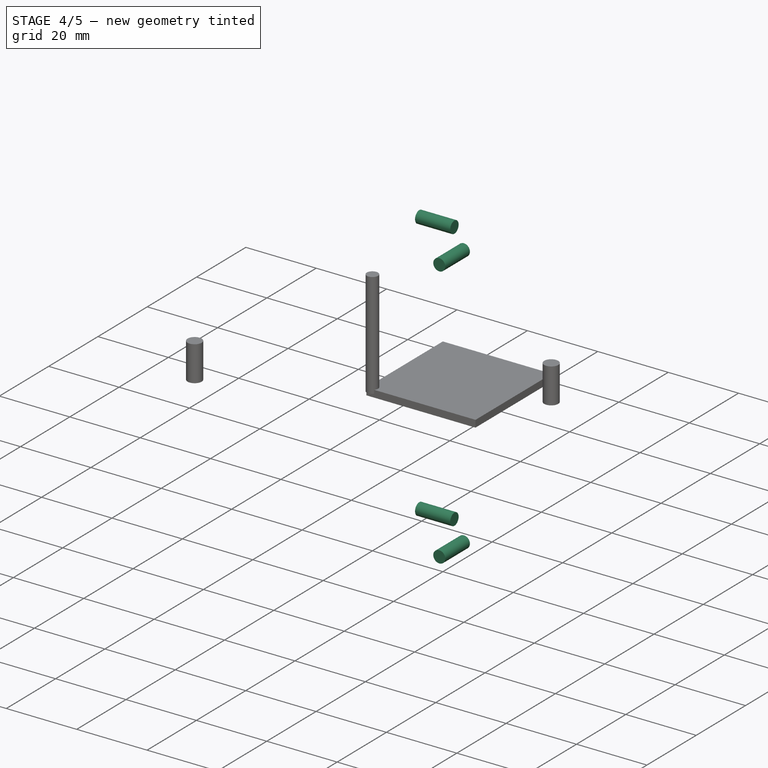
[diagram: stage 4 of 5 — iso view after this stage's code; geometry added in this stage tinted green]
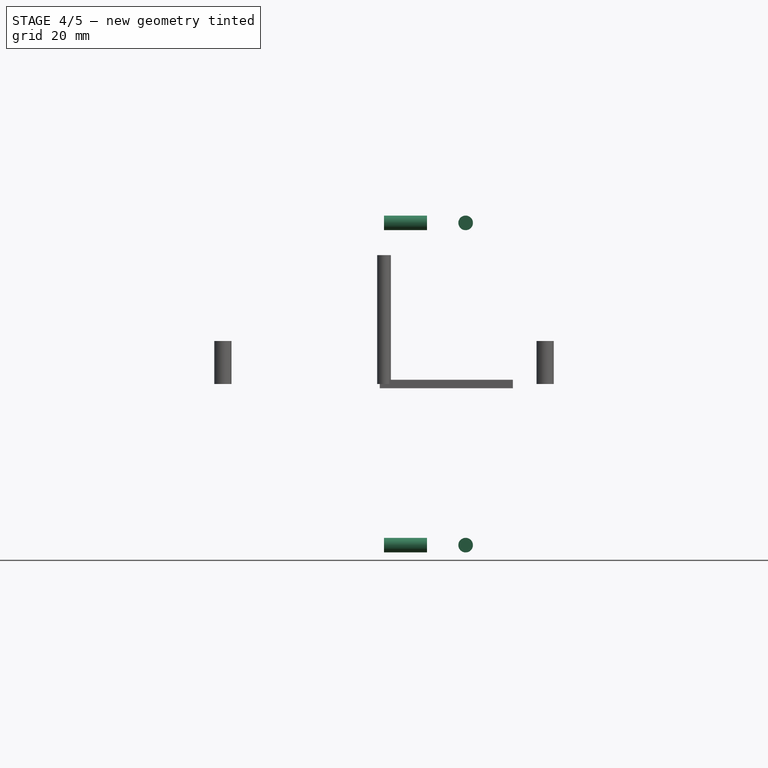
[diagram: stage 4 of 5 — front view after this stage's code; geometry added in this stage tinted green]
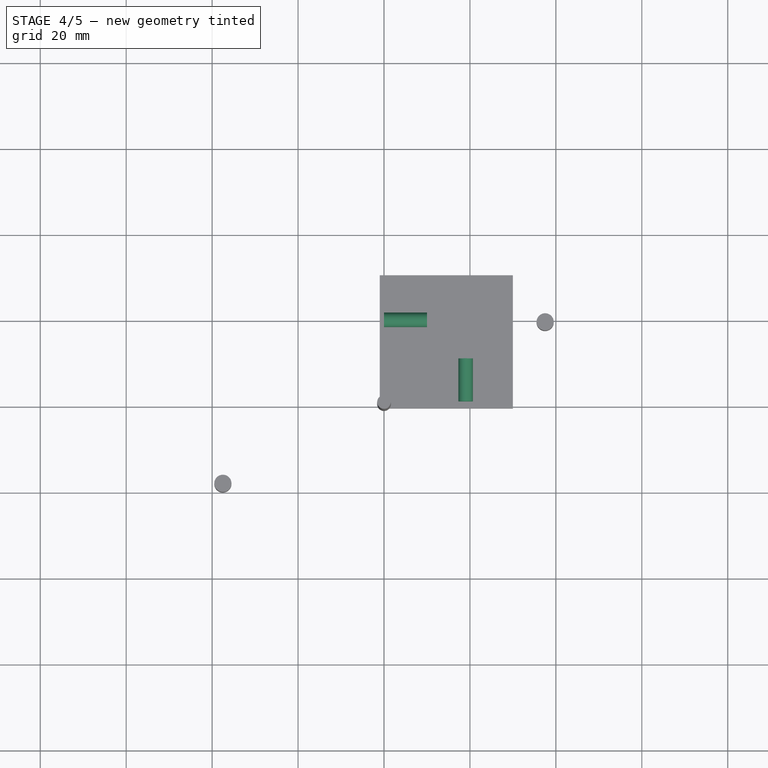
[diagram: stage 4 of 5 — top view after this stage's code; geometry added in this stage tinted green]
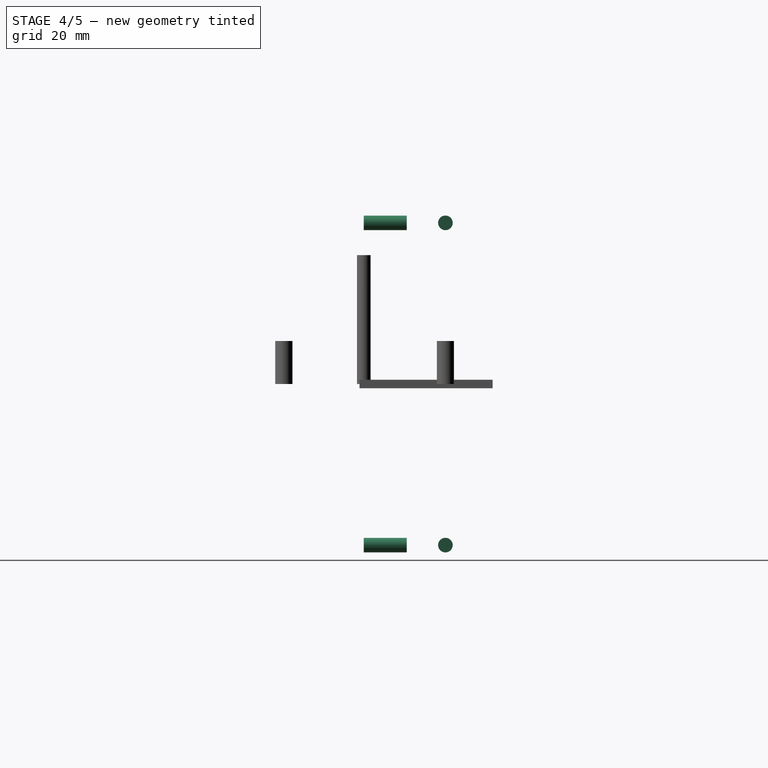
[diagram: stage 4 of 5 — right view after this stage's code; geometry added in this stage tinted green]
FEATURE [Part::FeaturePython] LinearArray  # WARN: FeaturePython — macro-defined, semantics opaque (R4)
  Alignment = 0
  CellStart = A1
  Count = 2
  Dir = (1,0,0)
  DirIsDriven = true
  DistributionLaw = 0
  DrivenProperty = 1
  EndInclusive = true
  ExposePlacement = false
  GeneratorMode = 0
  MarkerShape = 1
  MarkerSize = 0
  NumElements = 2
  OrientMode = 1
  Placement = pos=(19,0,-37.5) rot=(-0.57735,-0.57735,-0.57735;2.0944rad)
  Point = (0,0,0)
  PointIsDriven = true
  Reverse = false
  SpanEnd = 75
  SpanStart = 0
  Step = 75
  Type = lattice2LinearArray.LinearArray
  VSGVersion = 1
  Values = 0.0 | 75.0
  ValuesSource = 2
  isLattice = 1
  expr: .Placement.Base.z = -SpanEnd / 2
FEATURE [Part::FeaturePython] Mirror  label="Mirror of LinearArray"  # WARN: FeaturePython — macro-defined, semantics opaque (R4)
  ExposePlacement = false
  FlipX = true
  FlipY = false
  FlipZ = false
  MarkerShape = 1
  MarkerSize = 0
  NumElements = 2
  Object = -> LinearArray
  ObjectTraversal = 0
  PivotPlacement = pos=(0,0,0) rot=(0,0,1;-0.785398rad)
  Type = lattice2Mirror.LatticeMirror
  isLattice = 1
FEATURE [Part::FeaturePython] Join  # WARN: FeaturePython — macro-defined, semantics opaque (R4)
  ExposePlacement = false
  Interleave = false
  Links = -> [LinearArray,Mirror]
  MarkerShape = 1
  MarkerSize = 0
  NumElements = 4
  Type = lattice2JoinArrays.JoinArrays
  isLattice = 1
FEATURE [Part::Cylinder] Cylinder
  Angle = 360
  AttacherType = Attacher::AttachEngine3D
  FirstAngle = 0
  Height = 10
  Radius = 1.7
  SecondAngle = 0
FEATURE [Part::FeaturePython] Populate  label="Populate Join with Cylinder"  # WARN: FeaturePython — macro-defined, semantics opaque (R4)
  Copying = 0
  ExposePlacement = false
  MarkerShape = 1
  MarkerSize = 0
  NumElements = 0
  Object = -> Cylinder
  OutputCompounding = 1
  PlacementsTo = -> Join
  Referencing = 0
  Type = lattice2PopulateCopies.LatticePopulateCopies
  isLattice = 0
FEATURE [Path::FeaturePython] TC__Default_Tool  label="Tool 3,175 1Flute"  # Path/CAM operation (typed FeaturePython)
  HorizFeed = 51.6667
  HorizRapid = 0
  SpindleDir = 0
  SpindleSpeed = 18000
  Tool = -> ToolBit
  ToolNumber = 1
  VertFeed = 16.6667
  VertRapid = 0
  expr: HorizRapid = SetupSheet.HorizRapid
  expr: VertRapid = SetupSheet.VertRapid
FEATURE [App::DocumentObjectGroup] Tools
  Group = -> [TC__Default_Tool]
FEATURE [Part::FeaturePython] Stock  # WARN: FeaturePython — macro-defined, semantics opaque (R4)
  Base = -> Model
  ExtXneg = 1
  ExtXpos = 1
  ExtYneg = 1
  ExtYpos = 1
  ExtZneg = 1
  ExtZpos = 1
  StockType = FromBase
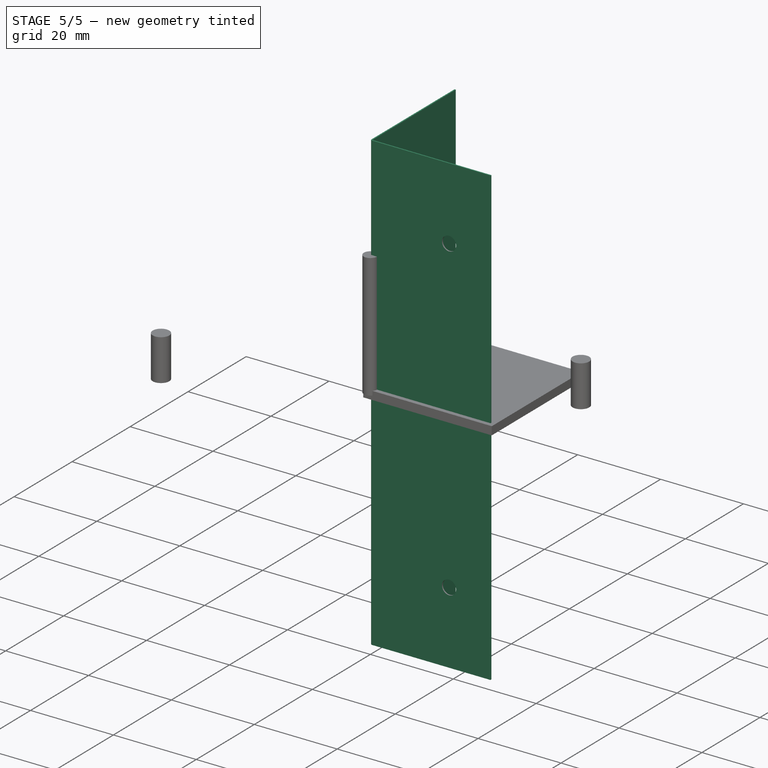
[diagram: stage 5 of 5 — iso view after this stage's code; geometry added in this stage tinted green]
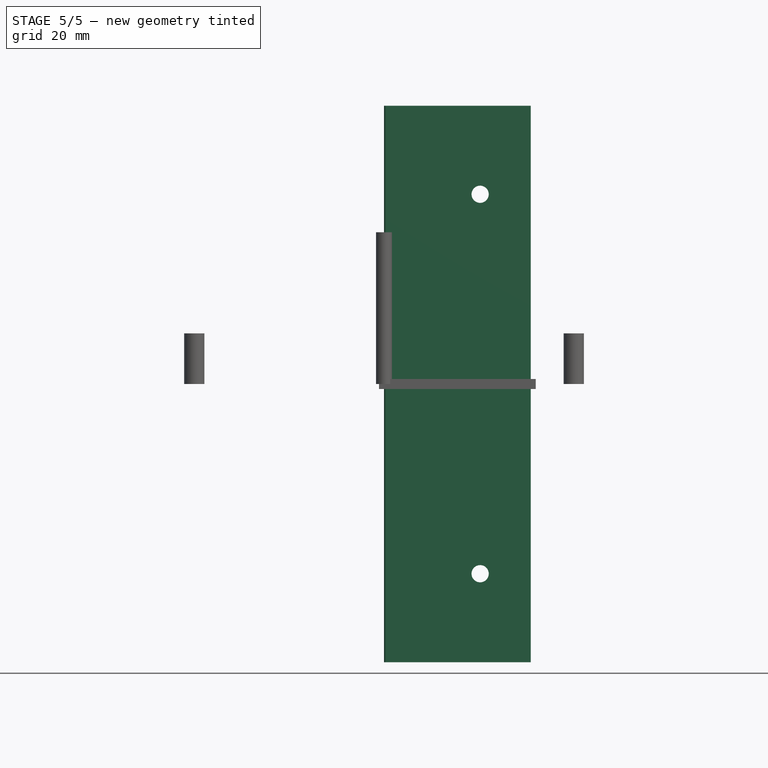
[diagram: stage 5 of 5 — front view after this stage's code; geometry added in this stage tinted green]
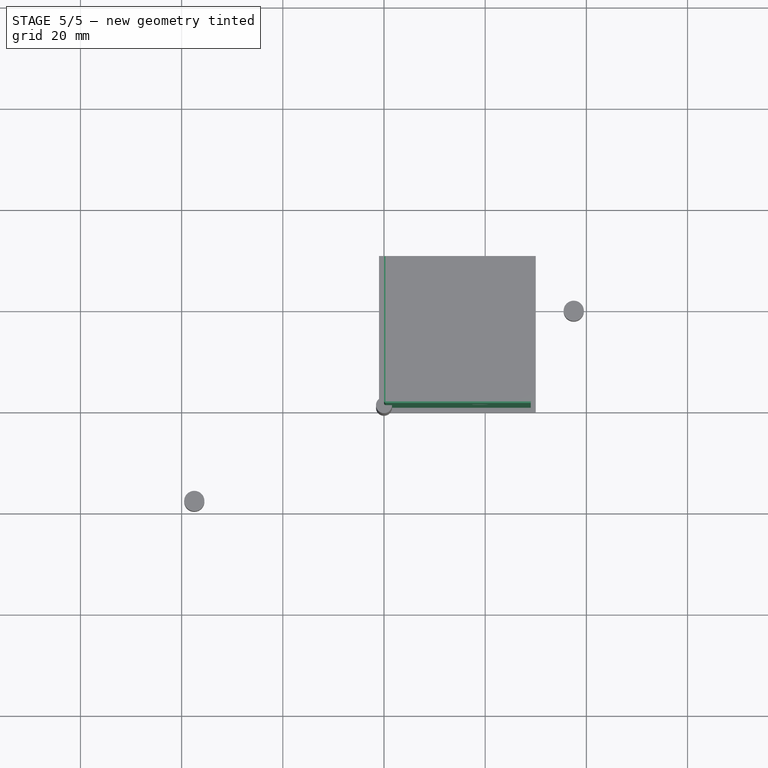
[diagram: stage 5 of 5 — top view after this stage's code; geometry added in this stage tinted green]
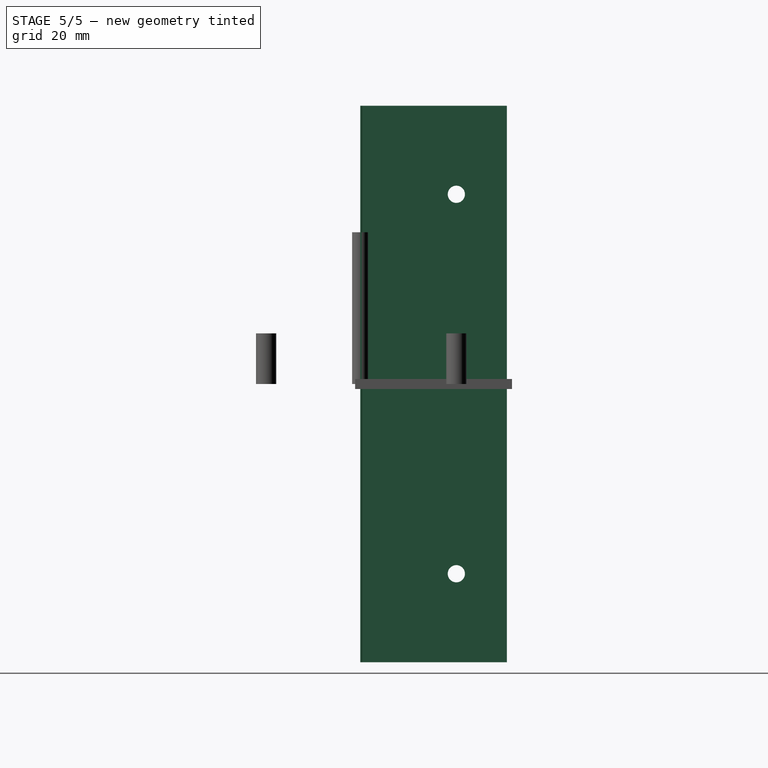
[diagram: stage 5 of 5 — right view after this stage's code; geometry added in this stage tinted green]
FEATURE [Sketcher::SketchObject] Sketch
  ArcFitTolerance = 1e-06
  FullyConstrained = true
  MakeInternals = false
  sketch-geometry (2):
    g0: LineSegment StartX=29 StartY=0 StartZ=0 EndX=0 EndY=0 EndZ=0
    g1: LineSegment StartX=0 StartY=0 StartZ=0 EndX=0 EndY=29 EndZ=0
  constraints (6):
    c: PointOnObject(g0,g-1)
    c: Coincident(g0,g-1)
    c: Coincident(g0,g1)
    c: PointOnObject(g1,g-2)
    c: Equal(g0,g1)
    c: DistanceX(g0,g0) = 29
FEATURE [PartDesign::Body] Body001
  AllowCompound = false
  Origin = -> Origin001
FEATURE [PartDesign::SubShapeBinder] Binder
  BindCopyOnChange = 0
  BindMode = 0
  ClaimChildren = false
  Context = -> Body [Binder.]
  Fuse = false
  MakeFace = true
  OffsetFill = false
  OffsetIntersection = false
  OffsetJoinType = 0
  OffsetOpenResult = false
  PartialLoad = false
  Relative = true
  Support = -> [Sketch]
  _Version = 2
FEATURE [PartDesign::FeaturePython] BaseBend  # WARN: FeaturePython — macro-defined, semantics opaque (R4)
  BendSide = 0
  BendSketch = -> Binder
  MidPlane = true
  Reverse = false
  Suppressed = false
  length = 110
  radius = 0.1
  thickness = 0.3
FEATURE [Part::MultiFuse] Fusion
  Shapes = -> [Populate]
FEATURE [PartDesign::Boolean] Boolean
  BaseFeature = -> BaseBend
  Group = -> [Fusion]
  Suppressed = false
  Type = 1
  UsePlacement = true
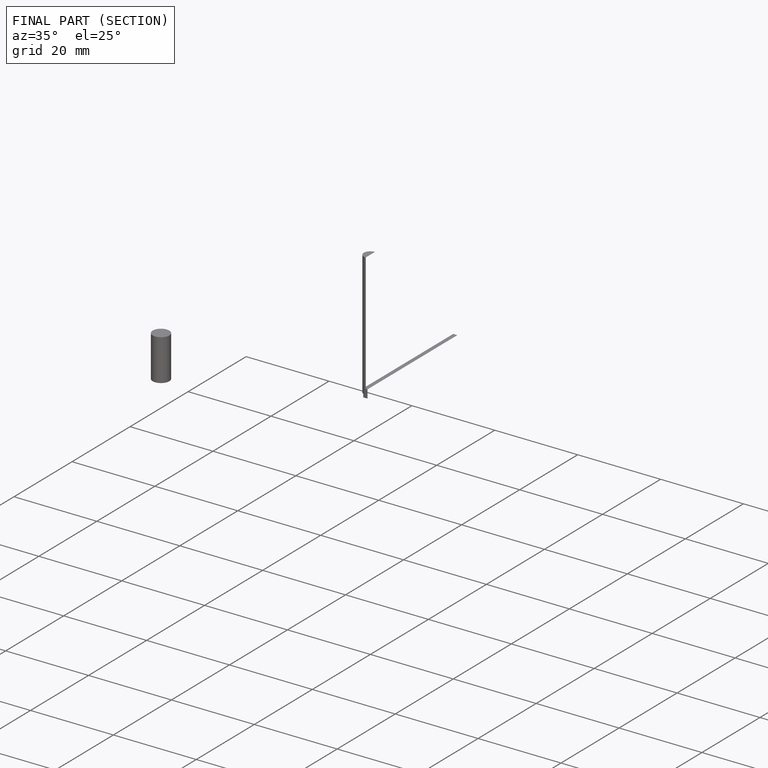
[diagram: finished part — half-section view (interior)]
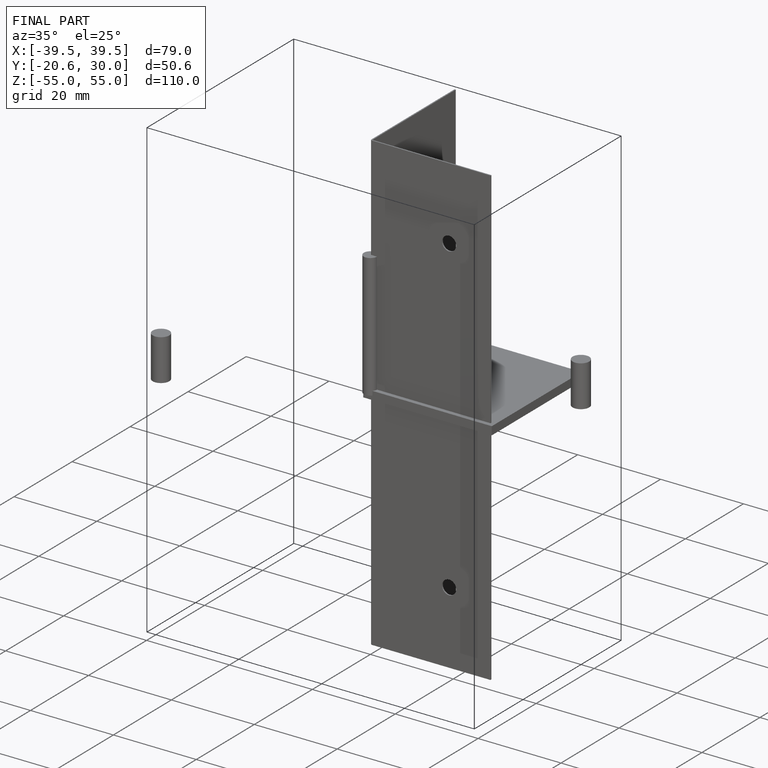
[diagram: finished part — iso view with bounding-box wireframe]
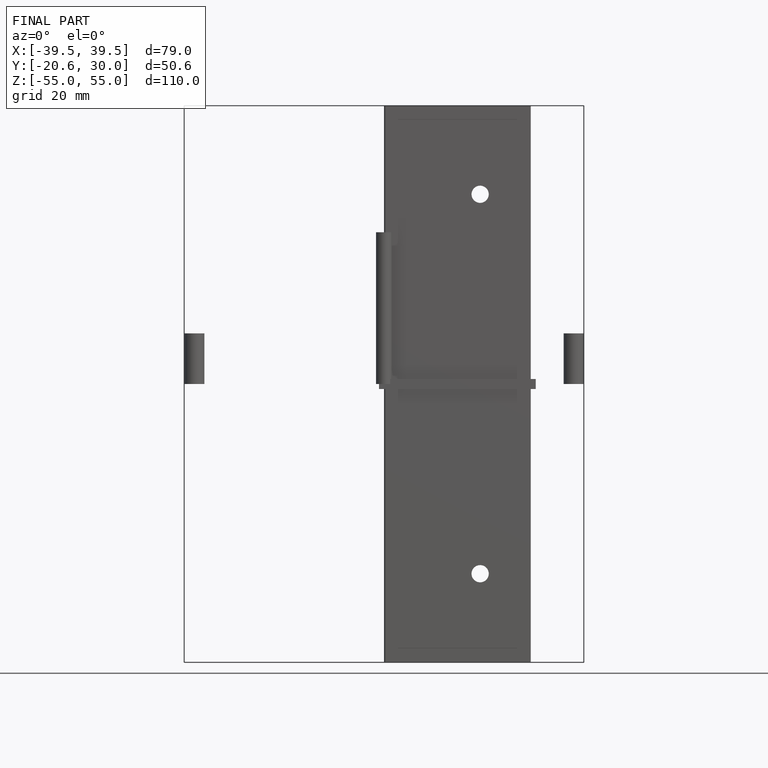
[diagram: finished part — front view with bounding-box wireframe]
